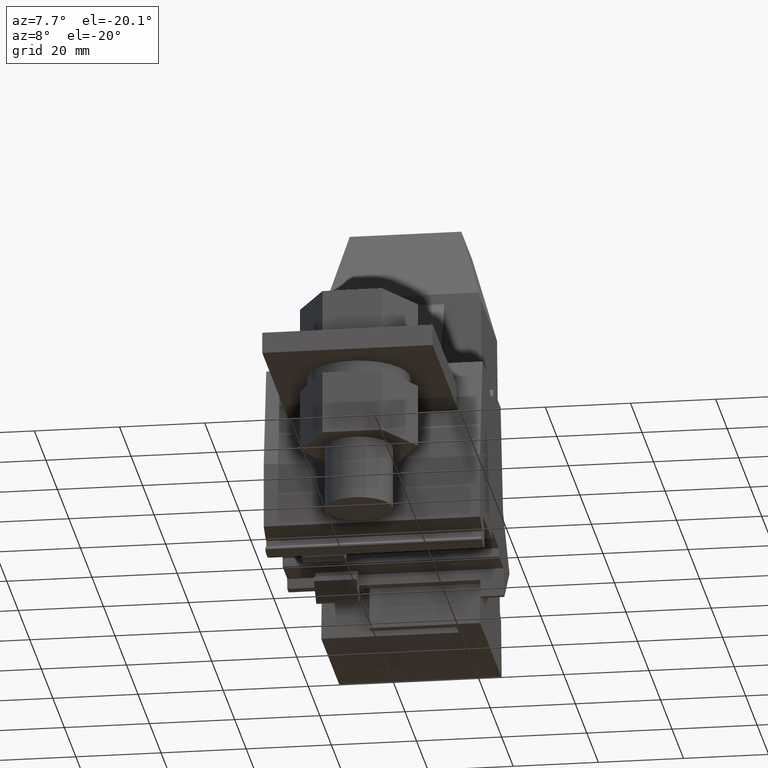
[diagram: clean part render]
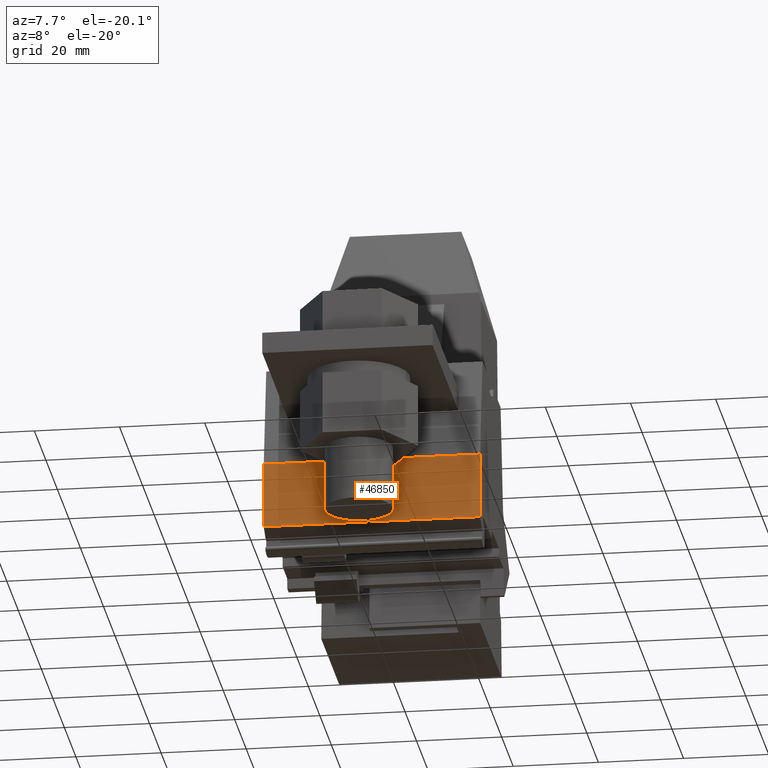
[diagram: same view with one face highlighted and labeled with its STEP entity id]
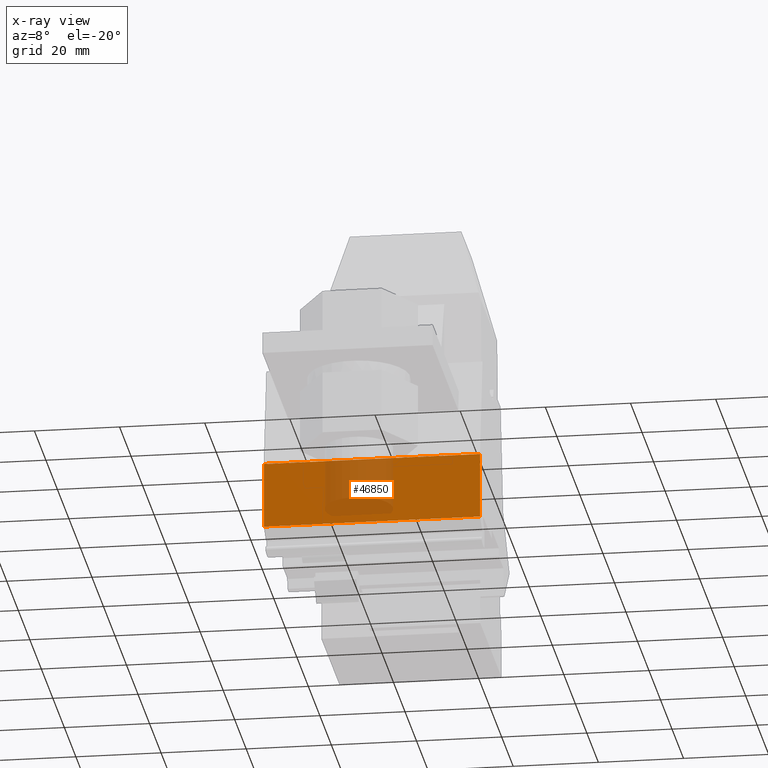
[diagram: x-ray of the same camera — body ghosted, the highlighted face saturated]
A machine part, auxiliary view. The second image highlights one B-rep face of the part: STEP entity #46850.
The next image is the same camera in x-ray: the body ghosted, the highlighted face saturated — about 28% of this face is hidden behind the body in this view.
In plain terms, the highlighted planar face has unit normal (0, 1, 0).
Its self-contained STEP definition (entity closure, byte-faithful):
#1610=CARTESIAN_POINT('',(-220.60756920196,746.081092873312,27.6));
#1620=VERTEX_POINT('',#1610);
#1650=CARTESIAN_POINT('',(-220.60756920196,732.481092873311,27.6));
#1660=DIRECTION('',(0.,1.,0.));
#1670=VECTOR('',#1660,1.);
#1680=LINE('',#1650,#1670);
#1690=CARTESIAN_POINT('',(-220.60756920196,730.572951302016,27.6));
#1700=VERTEX_POINT('',#1690);
#1710=EDGE_CURVE('',#1700,#1620,#1680,.T.);
#35350=CARTESIAN_POINT('',(-220.60756920196,730.572951302016,27.6));
#35360=DIRECTION('',(0.,0.,-1.));
#35370=VECTOR('',#35360,1.);
#35380=LINE('',#35350,#35370);
#35390=CARTESIAN_POINT('',(-220.60756920196,730.572951302016,-23.2));
#35400=VERTEX_POINT('',#35390);
#35410=EDGE_CURVE('',#1700,#35400,#35380,.T.);
#37220=CARTESIAN_POINT('',(-220.60756920196,746.081092873312,-23.2));
#37230=VERTEX_POINT('',#37220);
#37260=CARTESIAN_POINT('',(-220.60756920196,746.081092873312,0.));
#37270=DIRECTION('',(0.,0.,1.));
#37280=VECTOR('',#37270,1.);
#37290=LINE('',#37260,#37280);
#37300=EDGE_CURVE('',#37230,#1620,#37290,.T.);
#46690=CARTESIAN_POINT('',(-220.60756920196,745.993604209786,27.6));
#46700=DIRECTION('',(-1.,0.,0.));
#46710=DIRECTION('',(0.,1.,0.));
#46720=AXIS2_PLACEMENT_3D('',#46690,#46700,#46710);
#46730=PLANE('',#46720);
#46740=ORIENTED_EDGE('',*,*,#1710,.F.);
#46750=ORIENTED_EDGE('',*,*,#37300,.T.);
#46760=CARTESIAN_POINT('',(-220.60756920196,732.481092873311,-23.2));
#46770=DIRECTION('',(0.,1.,0.));
#46780=VECTOR('',#46770,1.);
#46790=LINE('',#46760,#46780);
#46800=EDGE_CURVE('',#35400,#37230,#46790,.T.);
#46810=ORIENTED_EDGE('',*,*,#46800,.T.);
#46820=ORIENTED_EDGE('',*,*,#35410,.T.);
#46830=EDGE_LOOP('',(#46820,#46810,#46750,#46740));
#46840=FACE_OUTER_BOUND('',#46830,.T.);
#46850=ADVANCED_FACE('',(#46840),#46730,.F.);